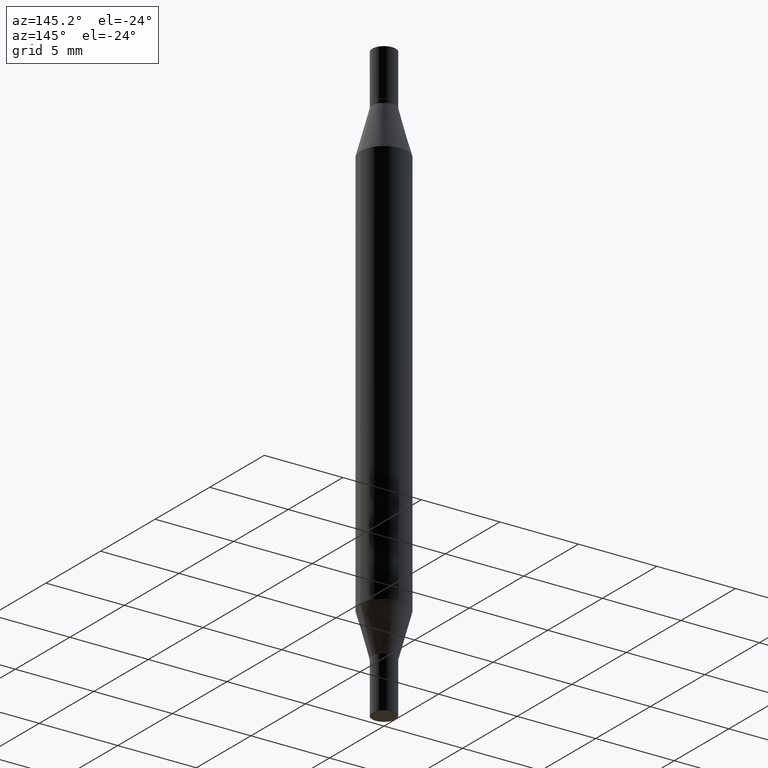
[diagram: clean part render]
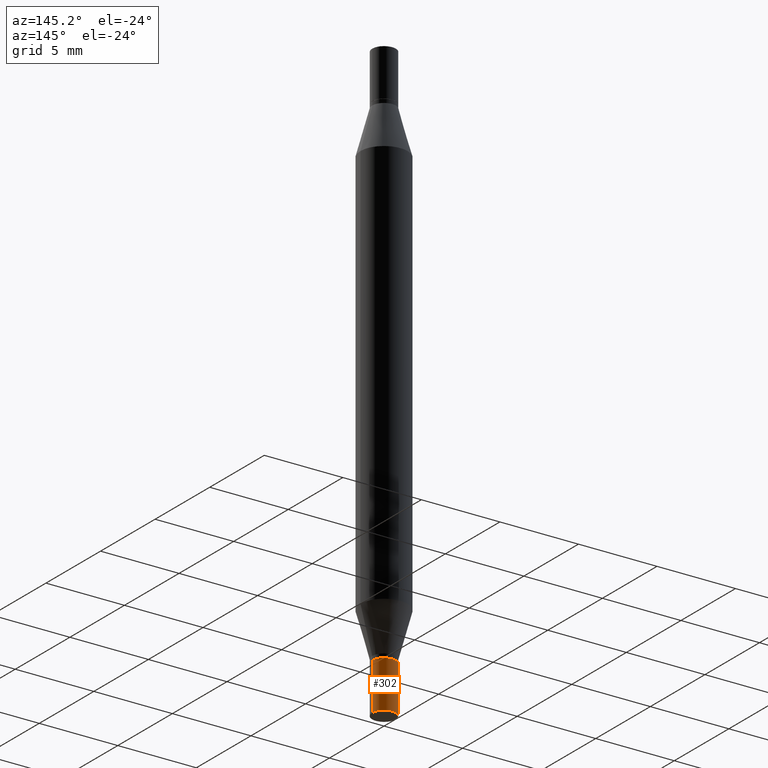
[diagram: same view with one face highlighted and labeled with its STEP entity id]
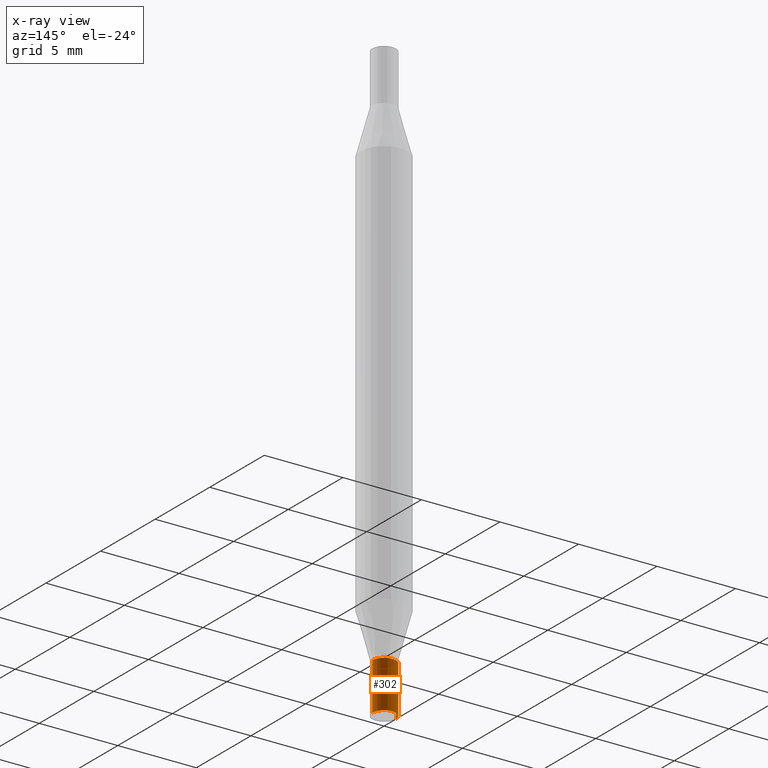
[diagram: x-ray of the same camera — body ghosted, the highlighted face saturated]
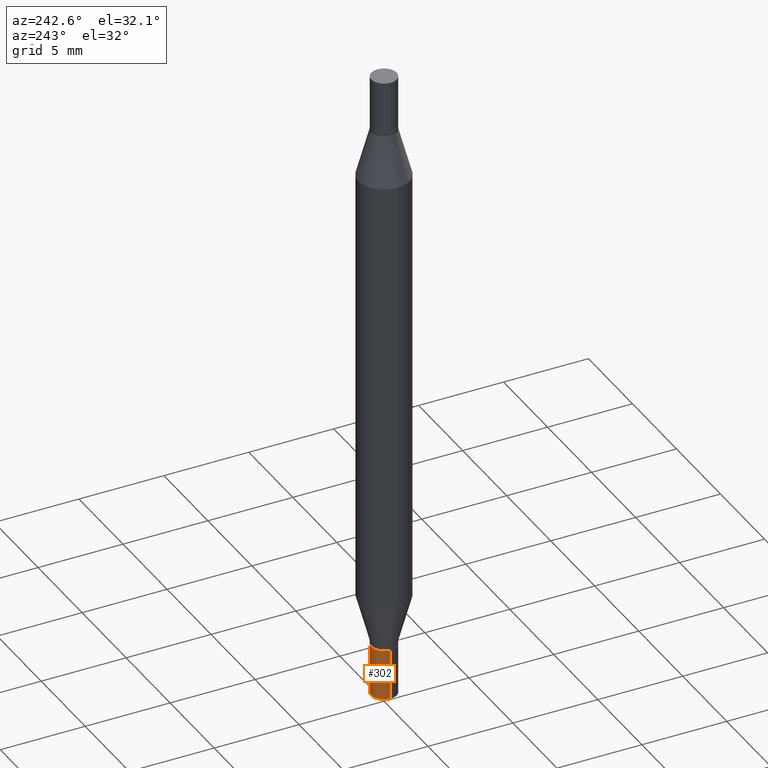
[diagram: same view with one face highlighted and labeled with its STEP entity id]
A machine part, auxiliary view. The second image highlights one B-rep face of the part: STEP entity #302.
The next image is the same camera in x-ray: the body ghosted, the highlighted face saturated — about 0% of this face is hidden behind the body in this view.
A second angle (auxiliary view) of the same face is appended — the face is thin or edge-on in the first view.
In plain terms, the highlighted cylindrical surface (edge-blend (fillet) strip) has radius 0.7506 mm, axis along (-0, 0, 1).
Its self-contained STEP definition (entity closure, byte-faithful):
#27 = VECTOR ( 'NONE', #516, 39.37007874015748143 ) ;
#47 = AXIS2_PLACEMENT_3D ( 'NONE', #460, #817, #906 ) ;
#49 = CARTESIAN_POINT ( 'NONE',  ( -0.02954999999999999988, -4.807467879567433237E-15, -1.377999999999999892 ) ) ;
#62 = VERTEX_POINT ( 'NONE', #638 ) ;
#69 = EDGE_LOOP ( 'NONE', ( #665, #248, #207, #581 ) ) ;
#127 = VERTEX_POINT ( 'NONE', #304 ) ;
#169 = LINE ( 'NONE', #250, #27 ) ;
#207 = ORIENTED_EDGE ( 'NONE', *, *, #729, .F. ) ;
#248 = ORIENTED_EDGE ( 'NONE', *, *, #450, .T. ) ;
#250 = CARTESIAN_POINT ( 'NONE',  ( -0.02954999999999999988, 2.099653784171096041E-16, -1.453545319170324550E-30 ) ) ;
#251 = CARTESIAN_POINT ( 'NONE',  ( 0.02954999999999999988, -2.063465471256291914E-16, 1.440910237247699070E-30 ) ) ;
#285 = CARTESIAN_POINT ( 'NONE',  ( 3.369856014923117948E-29, -4.811261284925853951E-15, -1.377999999999999892 ) ) ;
#302 = ADVANCED_FACE ( 'NONE', ( #814 ), #957, .T. ) ;
#304 = CARTESIAN_POINT ( 'NONE',  ( 0.02954999999999999988, -5.429951778168858482E-15, -1.496099999999999985 ) ) ;
#350 = EDGE_CURVE ( 'NONE', #127, #62, #624, .T. ) ;
#361 = CIRCLE ( 'NONE', #832, 0.02954999999999999988 ) ;
#450 = EDGE_CURVE ( 'NONE', #872, #747, #169, .T. ) ;
#460 = CARTESIAN_POINT ( 'NONE',  ( 3.658665880933582389E-29, -5.223605231043229660E-15, -1.496099999999999985 ) ) ;
#516 = DIRECTION ( 'NONE',  ( -2.445468806185136877E-29, 3.491481338843145188E-15, 1.000000000000000000 ) ) ;
#543 = DIRECTION ( 'NONE',  ( 1.000000000000000000, -6.982962677686266711E-15, 4.876176775795935793E-29 ) ) ;
#554 = DIRECTION ( 'NONE',  ( 1.000000000000000000, -6.982962677686261977E-15, 0.000000000000000000 ) ) ;
#567 = AXIS2_PLACEMENT_3D ( 'NONE', #877, #934, #543 ) ;
#581 = ORIENTED_EDGE ( 'NONE', *, *, #350, .F. ) ;
#588 = CARTESIAN_POINT ( 'NONE',  ( -0.02954999999999999988, -4.807467879567433237E-15, -1.496099999999999985 ) ) ;
#624 = LINE ( 'NONE', #251, #889 ) ;
#638 = CARTESIAN_POINT ( 'NONE',  ( 0.02954999999999999988, -5.017607832051483561E-15, -1.377999999999999892 ) ) ;
#665 = ORIENTED_EDGE ( 'NONE', *, *, #763, .T. ) ;
#729 = EDGE_CURVE ( 'NONE', #62, #747, #361, .T. ) ;
#747 = VERTEX_POINT ( 'NONE', #49 ) ;
#763 = EDGE_CURVE ( 'NONE', #127, #872, #908, .T. ) ;
#787 = DIRECTION ( 'NONE',  ( -2.445468806185136597E-29, 3.491481338843145583E-15, 1.000000000000000000 ) ) ;
#797 = DIRECTION ( 'NONE',  ( -2.445468806185136877E-29, 3.491481338843145188E-15, 1.000000000000000000 ) ) ;
#814 = FACE_OUTER_BOUND ( 'NONE', #69, .T. ) ;
#817 = DIRECTION ( 'NONE',  ( -2.445468806185136597E-29, 3.491481338843145583E-15, 1.000000000000000000 ) ) ;
#832 = AXIS2_PLACEMENT_3D ( 'NONE', #285, #787, #554 ) ;
#872 = VERTEX_POINT ( 'NONE', #588 ) ;
#877 = CARTESIAN_POINT ( 'NONE',  ( 0.000000000000000000, 0.000000000000000000, 0.000000000000000000 ) ) ;
#889 = VECTOR ( 'NONE', #797, 39.37007874015748143 ) ;
#906 = DIRECTION ( 'NONE',  ( 1.000000000000000000, -6.982962677686261977E-15, 0.000000000000000000 ) ) ;
#908 = CIRCLE ( 'NONE', #47, 0.02954999999999999988 ) ;
#934 = DIRECTION ( 'NONE',  ( -2.445468806185136597E-29, 3.491481338843145583E-15, 1.000000000000000000 ) ) ;
#957 = CYLINDRICAL_SURFACE ( 'NONE', #567, 0.02954999999999999988 ) ;